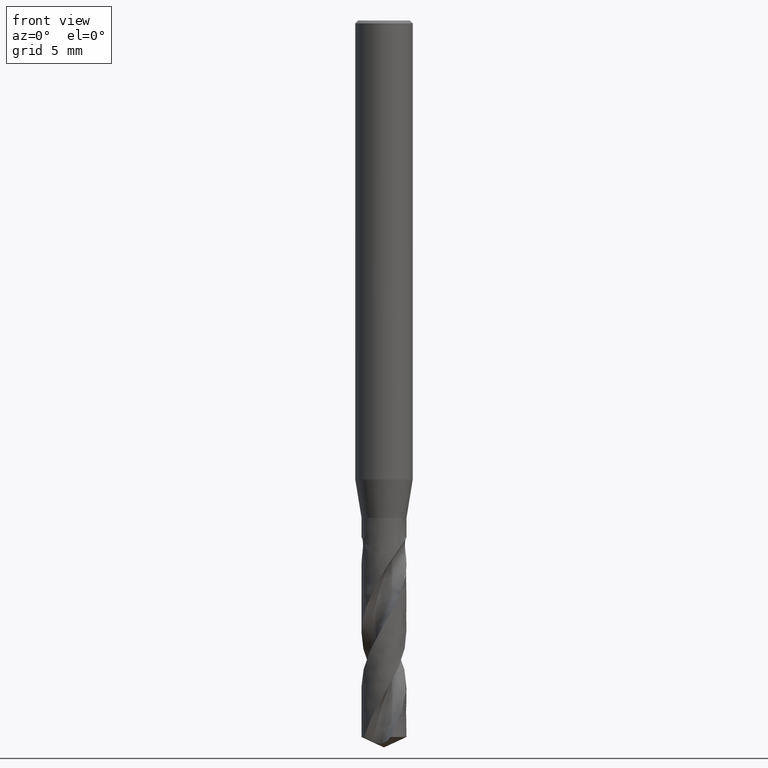
[diagram: clean part render]
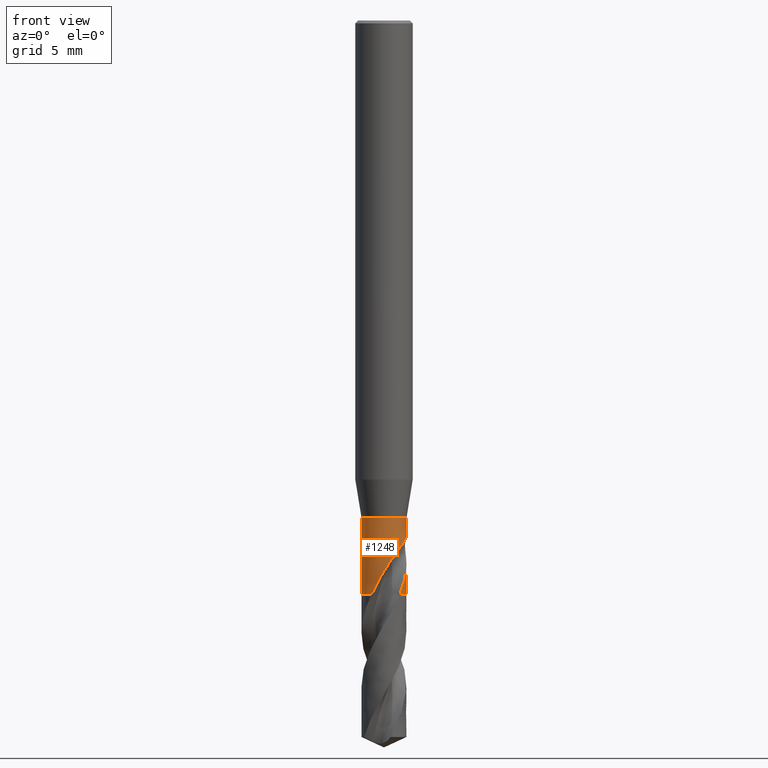
[diagram: same view with one face highlighted and labeled with its STEP entity id]
A machine part, front view. The second image highlights one B-rep face of the part: STEP entity #1248.
In plain terms, the highlighted face is a freeform B-spline surface patch.
Its self-contained STEP definition (entity closure, byte-faithful):
#75 = VERTEX_POINT('', #76);
#76 = CARTESIAN_POINT('', (-1.175, 1.66398883834147E-15, -26.));
#90 = EDGE_CURVE('', #75, #75, #91, .T.);
#91 = CIRCLE('', #92, 1.175);
#92 = AXIS2_PLACEMENT_3D('', #93, #94, #95);
#93 = CARTESIAN_POINT('', (9.74843858730207E-32, 1.59204083889156E-15, -26.));
#94 = DIRECTION('', (3.74939945665464E-33, 6.12323399573677E-17, -1.));
#95 = DIRECTION('', (-1., 6.12323399573677E-17, 0.));
#207 = VERTEX_POINT('', #208);
#208 = CARTESIAN_POINT('', (-0.655673400310535, -0.975047379425853, -30.));
#217 = VERTEX_POINT('', #218);
#218 = CARTESIAN_POINT('', (0.728223961589318, -0.922125187687202, -27.6945371314844));
#235 = EDGE_CURVE('', #217, #207, #236, .T.);
#236 = B_SPLINE_CURVE_WITH_KNOTS('', 3, (#237, #238, #239, #240, #241, #242, #243, #244, #245, #246, #247, #248, #249, #250, #251, #252, #253, #254, #255, #256, #257, #258, #259, #260, #261, #262, #263, #264, #265, #266, #267, #268, #269, #270, #271, #272, #273, #274, #275, #276, #277, #278, #279, #280, #281, #282, #283, #284, #285, #286, #287, #288, #289, #290, #291, #292, #293, #294, #295, #296, #297, #298, #299, #300, #301, #302, #303, #304, #305, #306, #307, #308, #309), .UNSPECIFIED., .F., .U., (4, 3, 3, 3, 3, 3, 3, 3, 3, 3, 3, 3, 3, 3, 3, 3, 3, 3, 3, 3, 3, 3, 3, 3, 4), (0., 0.130708941102905, 0.261447312499575, 0.39222457829846, 0.52304878510514, 0.653924929718064, 0.784858152188691, 0.915854203384153, 1.04691876560939, 1.2434761431331, 1.33095452846259, 1.356904802829, 1.48858396901624, 1.54702226254914, 1.63469544277415, 1.72232080386274, 1.78072807856721, 1.83914522586473, 2.03643365653902, 2.23362667741057, 2.36506456250743, 2.49649135390406, 2.58409155737215, 2.71551037703811, 2.74565441674045), .UNSPECIFIED.);
#237 = CARTESIAN_POINT('', (0.728223961589318, -0.922125187687202, -27.6945371314844));
#238 = CARTESIAN_POINT('', (0.706147619247108, -0.939559394769396, -27.7278087060624));
#239 = CARTESIAN_POINT('', (0.683618240093128, -0.956063156232706, -27.7612829148464));
#240 = CARTESIAN_POINT('', (0.66073713150605, -0.971623097218855, -27.7949378884614));
#241 = CARTESIAN_POINT('', (0.637850871031567, -0.987186541665672, -27.8286004397965));
#242 = CARTESIAN_POINT('', (0.614600674817937, -1.00181388645845, -27.8624629984731));
#243 = CARTESIAN_POINT('', (0.591089577367171, -1.0154989470836, -27.8965087984533));
#244 = CARTESIAN_POINT('', (0.567571485412259, -1.02918807898672, -27.9305647269903));
#245 = CARTESIAN_POINT('', (0.543778513475522, -1.04194264968761, -27.9648200616525));
#246 = CARTESIAN_POINT('', (0.519805333449783, -1.05376819809537, -27.9992546706134));
#247 = CARTESIAN_POINT('', (0.495823548524534, -1.06559799114883, -28.0337016394844));
#248 = CARTESIAN_POINT('', (0.471649816550208, -1.07650372513854, -28.0683449778835));
#249 = CARTESIAN_POINT('', (0.447381295979177, -1.08649665255259, -28.1031708875957));
#250 = CARTESIAN_POINT('', (0.423103140694892, -1.09649354720436, -28.1380106233527));
#251 = CARTESIAN_POINT('', (0.398717734821477, -1.10558223215939, -28.1730479365058));
#252 = CARTESIAN_POINT('', (0.374312186310554, -1.11378426419994, -28.2082654007329));
#253 = CARTESIAN_POINT('', (0.349895994023188, -1.12198987332033, -28.2434982240419));
#254 = CARTESIAN_POINT('', (0.325449100506042, -1.12931149643608, -28.2789265619153));
#255 = CARTESIAN_POINT('', (0.301060944744661, -1.13577608160652, -28.3145392184057));
#256 = CARTESIAN_POINT('', (0.276661086248874, -1.1422437688288, -28.3501689637431));
#257 = CARTESIAN_POINT('', (0.252308750143946, -1.14785687948354, -28.3859964107117));
#258 = CARTESIAN_POINT('', (0.228077925231853, -1.15265149113771, -28.4220039328229));
#259 = CARTESIAN_POINT('', (0.203834427580759, -1.15744861037725, -28.4580302868942));
#260 = CARTESIAN_POINT('', (0.179703067323351, -1.16142810634957, -28.4942502964889));
#261 = CARTESIAN_POINT('', (0.155761767129315, -1.16463010089079, -28.5306538553123));
#262 = CARTESIAN_POINT('', (0.119857025979221, -1.1694321285265, -28.5852482318041));
#263 = CARTESIAN_POINT('', (0.0843594954159682, -1.17248691571997, -28.6402922015818));
#264 = CARTESIAN_POINT('', (0.0495036255594145, -1.17395672452458, -28.6957508695212));
#265 = CARTESIAN_POINT('', (0.0339909276758754, -1.17461086685487, -28.7204328976648));
#266 = CARTESIAN_POINT('', (0.0186023193820767, -1.17495171604368, -28.7452035322269));
#267 = CARTESIAN_POINT('', (0.0033517643813148, -1.17499521942668, -28.7700569603752));
#268 = CARTESIAN_POINT('', (-0.00117227987280816, -1.17500812461143, -28.7774296762405));
#269 = CARTESIAN_POINT('', (-0.0056843942496658, -1.17499486727685, -28.7848098169748));
#270 = CARTESIAN_POINT('', (-0.0101842768730923, -1.17495586321554, -28.7921972128114));
#271 = CARTESIAN_POINT('', (-0.0330179773352431, -1.17475794537469, -28.8296829869625));
#272 = CARTESIAN_POINT('', (-0.0555443301514691, -1.17389642310447, -28.8673596553337));
#273 = CARTESIAN_POINT('', (-0.0776989930517137, -1.17242819246159, -28.9052227709283));
#274 = CARTESIAN_POINT('', (-0.0875310775885031, -1.17177660196503, -28.9220261569707));
#275 = CARTESIAN_POINT('', (-0.0972901831377558, -1.17100557324817, -28.9388682440366));
#276 = CARTESIAN_POINT('', (-0.106967460547565, -1.17012091784739, -28.9557506587264));
#277 = CARTESIAN_POINT('', (-0.121485983165955, -1.16879369647077, -28.9810788279157));
#278 = CARTESIAN_POINT('', (-0.135817782655265, -1.16721135807888, -29.0065024902311));
#279 = CARTESIAN_POINT('', (-0.149977718354141, -1.1653890697949, -29.0320023070246));
#280 = CARTESIAN_POINT('', (-0.164129930871367, -1.16356777543235, -29.0574882155827));
#281 = CARTESIAN_POINT('', (-0.178111979100726, -1.16150729484039, -29.0830527979671));
#282 = CARTESIAN_POINT('', (-0.191996665310271, -1.15920760889055, -29.1086469516104));
#283 = CARTESIAN_POINT('', (-0.201251596434679, -1.15767473772931, -29.1257069071313));
#284 = CARTESIAN_POINT('', (-0.21046497799381, -1.15603517372951, -29.1427801743576));
#285 = CARTESIAN_POINT('', (-0.219671499313267, -1.15428308156598, -29.1598452165414));
#286 = CARTESIAN_POINT('', (-0.228879576812821, -1.15253069324597, -29.1769131432326));
#287 = CARTESIAN_POINT('', (-0.238086504335566, -1.15066433140619, -29.1939703764921));
#288 = CARTESIAN_POINT('', (-0.247287774792765, -1.14868348836311, -29.2110169761651));
#289 = CARTESIAN_POINT('', (-0.278362626830041, -1.14199371603665, -29.2685873481088));
#290 = CARTESIAN_POINT('', (-0.309368037322333, -1.13399559375379, -29.3260582297454));
#291 = CARTESIAN_POINT('', (-0.340081876922254, -1.12470854757534, -29.3834616968791));
#292 = CARTESIAN_POINT('', (-0.370780863135347, -1.11542599266504, -29.4408374033708));
#293 = CARTESIAN_POINT('', (-0.40120617640093, -1.10485405861562, -29.4981665930941));
#294 = CARTESIAN_POINT('', (-0.431260520279246, -1.09299559177907, -29.555408871647));
#295 = CARTESIAN_POINT('', (-0.451293072039344, -1.08509139824017, -29.593563386436));
#296 = CARTESIAN_POINT('', (-0.471168242448222, -1.07661252284662, -29.6316862361695));
#297 = CARTESIAN_POINT('', (-0.490845301796055, -1.06756540301039, -29.6697717893674));
#298 = CARTESIAN_POINT('', (-0.510520700348769, -1.05851904677467, -29.7078541280454));
#299 = CARTESIAN_POINT('', (-0.530000037616222, -1.04890335784262, -29.7459073393837));
#300 = CARTESIAN_POINT('', (-0.549232374627432, -1.03873422907937, -29.7839327048891));
#301 = CARTESIAN_POINT('', (-0.562051348730394, -1.03195617614749, -29.8092778397724));
#302 = CARTESIAN_POINT('', (-0.574761257832528, -1.02493206358631, -29.8346137738538));
#303 = CARTESIAN_POINT('', (-0.58734918711692, -1.01766690640557, -29.8599397583029));
#304 = CARTESIAN_POINT('', (-0.606233741525474, -1.00676763513016, -29.89793408767));
#305 = CARTESIAN_POINT('', (-0.624849309943726, -0.995322041422717, -29.9359102804748));
#306 = CARTESIAN_POINT('', (-0.643139520461709, -0.983359830997931, -29.9738755711304));
#307 = CARTESIAN_POINT('', (-0.647334816336528, -0.980616012822658, -29.9825838157466));
#308 = CARTESIAN_POINT('', (-0.651513137322259, -0.97784496017656, -29.991292053987));
#309 = CARTESIAN_POINT('', (-0.655673400310535, -0.975047379425853, -30.));
#344 = VERTEX_POINT('', #345);
#345 = CARTESIAN_POINT('', (0.825852395738025, -0.83581865285106, -30.));
#400 = EDGE_CURVE('', #401, #344, #403, .T.);
#401 = VERTEX_POINT('', #402);
#402 = CARTESIAN_POINT('', (1.05736340685915, -0.512452559594757, -29.2913688102384));
#403 = B_SPLINE_CURVE_WITH_KNOTS('', 3, (#404, #405, #406, #407, #408, #409, #410, #411, #412, #413, #414, #415, #416, #417, #418, #419, #420, #421, #422), .UNSPECIFIED., .F., .U., (4, 3, 3, 3, 3, 3, 4), (0., 0.131423450375898, 0.328527383611053, 0.525611318318498, 0.613193575865388, 0.744564164750015, 0.81353262380367), .UNSPECIFIED.);
#404 = CARTESIAN_POINT('', (1.05736340685915, -0.512452559594757, -29.2913688102384));
#405 = CARTESIAN_POINT('', (1.04824423267107, -0.531268508323489, -29.3298645963408));
#406 = CARTESIAN_POINT('', (1.03856526669708, -0.549958086451639, -29.368293919513));
#407 = CARTESIAN_POINT('', (1.02834007429441, -0.568455531770347, -29.4066659766521));
#408 = CARTESIAN_POINT('', (1.01300471645007, -0.596197302487001, -29.4642149404543));
#409 = CARTESIAN_POINT('', (0.996432533162553, -0.623523224034753, -29.5216505043809));
#410 = CARTESIAN_POINT('', (0.978635789194107, -0.650305306843197, -29.5789449912185));
#411 = CARTESIAN_POINT('', (0.960840850916048, -0.677084672292244, -29.636233664852));
#412 = CARTESIAN_POINT('', (0.941806463035769, -0.703339534496423, -29.6933988530257));
#413 = CARTESIAN_POINT('', (0.921601294972819, -0.728886858918735, -29.7504503365057));
#414 = CARTESIAN_POINT('', (0.912622307234959, -0.740239850985341, -29.7758034822454));
#415 = CARTESIAN_POINT('', (0.903411524838046, -0.751454561233572, -29.8011379139708));
#416 = CARTESIAN_POINT('', (0.893977384692245, -0.762515203559124, -29.8264549801439));
#417 = CARTESIAN_POINT('', (0.879826475806271, -0.779105813763161, -29.8644297707596));
#418 = CARTESIAN_POINT('', (0.865168363260055, -0.79535433606874, -29.9023699587027));
#419 = CARTESIAN_POINT('', (0.850045696981187, -0.811201154488687, -29.9402878252319));
#420 = CARTESIAN_POINT('', (0.842106423823539, -0.819520601456278, -29.9601943876317));
#421 = CARTESIAN_POINT('', (0.834038381967652, -0.827730275885369, -29.980098134002));
#422 = CARTESIAN_POINT('', (0.825852395738025, -0.83581865285106, -30.));
#425 = VERTEX_POINT('', #426);
#426 = CARTESIAN_POINT('', (1.15441995681227, -0.218951052323476, -28.7489366982256));
#435 = EDGE_CURVE('', #436, #425, #438, .T.);
#436 = VERTEX_POINT('', #437);
#437 = CARTESIAN_POINT('', (1.17349179711718, 0.0595147216972623, -27.));
#438 = B_SPLINE_CURVE_WITH_KNOTS('', 3, (#439, #440, #441, #442, #443, #444, #445, #446, #447, #448, #449, #450, #451, #452, #453, #454, #455, #456, #457, #458, #459, #460, #461, #462, #463, #464, #465, #466, #467, #468, #469, #470, #471, #472, #473, #474, #475, #476, #477, #478, #479, #480, #481, #482, #483, #484, #485, #486, #487, #488, #489, #490, #491, #492, #493, #494, #495, #496, #497, #498, #499, #500, #501, #502, #503, #504, #505, #506, #507, #508, #509, #510, #511, #512, #513, #514, #515, #516, #517, #518, #519, #520), .UNSPECIFIED., .F., .U., (4, 3, 3, 3, 3, 3, 3, 3, 3, 3, 3, 3, 3, 3, 3, 3, 3, 3, 3, 3, 3, 3, 3, 3, 3, 3, 3, 4), (0., 0.0587268815344759, 0.117273374530463, 0.175594212654749, 0.214345425771027, 0.253030209825988, 0.291668855398273, 0.330288803076299, 0.368918028663163, 0.4075786970095, 0.446284128302547, 0.504328935508073, 0.530232402815746, 0.617652774464318, 0.705346455306154, 0.793218250621896, 0.881192313217055, 0.969214123800954, 1.05724705060524, 1.18960328857971, 1.32183325468689, 1.45389201843325, 1.5857641876645, 1.71745148788703, 1.74340668526851, 1.87543848439657, 2.00733830847293, 2.13530048111484), .UNSPECIFIED.);
#439 = CARTESIAN_POINT('', (1.17349179711715, 0.0595147216977758, -27.));
#440 = CARTESIAN_POINT('', (1.17250027583282, 0.0790652137548344, -27.0000180357386));
#441 = CARTESIAN_POINT('', (1.17101383921177, 0.0986369419191684, -27.0011025798756));
#442 = CARTESIAN_POINT('', (1.16906268767731, 0.117972167398513, -27.0034578384115));
#443 = CARTESIAN_POINT('', (1.16711752940121, 0.137248001795367, -27.0058058624129));
#444 = CARTESIAN_POINT('', (1.16469907354069, 0.156384342570996, -27.0094335294071));
#445 = CARTESIAN_POINT('', (1.16189267483894, 0.175015462618655, -27.0145188161465));
#446 = CARTESIAN_POINT('', (1.1590970927977, 0.193574773019162, -27.0195845027413));
#447 = CARTESIAN_POINT('', (1.15589734984247, 0.211751022429495, -27.0261378736872));
#448 = CARTESIAN_POINT('', (1.15245264414211, 0.2290805600872, -27.034246239082));
#449 = CARTESIAN_POINT('', (1.15016381344264, 0.240595151244981, -27.0396338330458));
#450 = CARTESIAN_POINT('', (1.14775877591772, 0.251785195212881, -27.0457281298189));
#451 = CARTESIAN_POINT('', (1.14530134421659, 0.262506820741255, -27.0525000202258));
#452 = CARTESIAN_POINT('', (1.1428481251547, 0.273210066779999, -27.0592603019556));
#453 = CARTESIAN_POINT('', (1.14033347997714, 0.283487896875866, -27.0667229619066));
#454 = CARTESIAN_POINT('', (1.13782768568226, 0.293211796650392, -27.0748128282049));
#455 = CARTESIAN_POINT('', (1.13532487999258, 0.302924098945644, -27.0828930458994));
#456 = CARTESIAN_POINT('', (1.13282129836942, 0.312122780319283, -27.0916313563214));
#457 = CARTESIAN_POINT('', (1.13038420170323, 0.320712576210771, -27.1009135293734));
#458 = CARTESIAN_POINT('', (1.12794828438935, 0.329298215354711, -27.1101912106248));
#459 = CARTESIAN_POINT('', (1.12556963813704, 0.337309419549899, -27.1200475316921));
#460 = CARTESIAN_POINT('', (1.12330385852, 0.344693257018571, -27.1303464369269));
#461 = CARTESIAN_POINT('', (1.12103753458072, 0.352078868352175, -27.1406478163314));
#462 = CARTESIAN_POINT('', (1.1188761738599, 0.358863848169986, -27.1514274759489));
#463 = CARTESIAN_POINT('', (1.11685912680145, 0.365035191290245, -27.1625471855611));
#464 = CARTESIAN_POINT('', (1.11484043794137, 0.371211557655324, -27.1736759462053));
#465 = CARTESIAN_POINT('', (1.11295996962745, 0.376793176976379, -27.185178552283));
#466 = CARTESIAN_POINT('', (1.11124082244056, 0.381796849831994, -27.1969292846248));
#467 = CARTESIAN_POINT('', (1.10951968475279, 0.386806316150345, -27.2086936224584));
#468 = CARTESIAN_POINT('', (1.10795561445941, 0.391250071027334, -27.2207360785623));
#469 = CARTESIAN_POINT('', (1.10655834604955, 0.395162785176041, -27.2329506199527));
#470 = CARTESIAN_POINT('', (1.10446292499997, 0.401030507891557, -27.251268222326));
#471 = CARTESIAN_POINT('', (1.10273629558481, 0.405725243051064, -27.2700361877191));
#472 = CARTESIAN_POINT('', (1.10137297993863, 0.409392915255141, -27.2889846722759));
#473 = CARTESIAN_POINT('', (1.1007645774997, 0.411029675399717, -27.2974407508448));
#474 = CARTESIAN_POINT('', (1.10022725967446, 0.412464237983772, -27.3059435151484));
#475 = CARTESIAN_POINT('', (1.09975875769987, 0.413709650434301, -27.3144748606337));
#476 = CARTESIAN_POINT('', (1.09817763281608, 0.417912733287567, -27.3432668900609));
#477 = CARTESIAN_POINT('', (1.09737958673878, 0.419980008768347, -27.372468090043));
#478 = CARTESIAN_POINT('', (1.09723419818462, 0.42035950605898, -27.401605379963));
#479 = CARTESIAN_POINT('', (1.09708835509078, 0.420740189801884, -27.4308337640874));
#480 = CARTESIAN_POINT('', (1.09759522042194, 0.419425626222034, -27.4601225062277));
#481 = CARTESIAN_POINT('', (1.09860616924773, 0.41676070459058, -27.489214443324));
#482 = CARTESIAN_POINT('', (1.09961917140981, 0.414090370241701, -27.5183654690002));
#483 = CARTESIAN_POINT('', (1.10113988161113, 0.410056121251838, -27.5473980536605));
#484 = CARTESIAN_POINT('', (1.10302928487431, 0.404909121544162, -27.5761709177204));
#485 = CARTESIAN_POINT('', (1.10492088706982, 0.399756131636156, -27.6049772683219));
#486 = CARTESIAN_POINT('', (1.10718515937803, 0.393477331767004, -27.6335751768807));
#487 = CARTESIAN_POINT('', (1.10969706721554, 0.386260817341374, -27.6618868270868));
#488 = CARTESIAN_POINT('', (1.11221033839292, 0.379040386147104, -27.6902138434624));
#489 = CARTESIAN_POINT('', (1.11497446715258, 0.3708717714894, -27.7182899590348));
#490 = CARTESIAN_POINT('', (1.11787904235186, 0.361899774344359, -27.7460737263374));
#491 = CARTESIAN_POINT('', (1.12078398436815, 0.352926644131309, -27.773861002435));
#492 = CARTESIAN_POINT('', (1.12383210925261, 0.343141080880676, -27.8013810156901));
#493 = CARTESIAN_POINT('', (1.12692586501502, 0.332660630012257, -27.8286147684932));
#494 = CARTESIAN_POINT('', (1.13157728226069, 0.316903423026466, -27.8695603237278));
#495 = CARTESIAN_POINT('', (1.1363344765806, 0.299559630236739, -27.9099066930374));
#496 = CARTESIAN_POINT('', (1.14091531390553, 0.280957730799239, -27.9496489754905));
#497 = CARTESIAN_POINT('', (1.14549178097264, 0.262373578138264, -27.9893533426001));
#498 = CARTESIAN_POINT('', (1.14989760828322, 0.242510944228357, -28.0284962773144));
#499 = CARTESIAN_POINT('', (1.15390404549158, 0.22165390544308, -28.0671186017205));
#500 = CARTESIAN_POINT('', (1.15790529543771, 0.200823870932136, -28.1056909205694));
#501 = CARTESIAN_POINT('', (1.16151084483505, 0.178987732108991, -28.143774200847));
#502 = CARTESIAN_POINT('', (1.16454351718573, 0.156407789386202, -28.1814394793578));
#503 = CARTESIAN_POINT('', (1.16757190447414, 0.133859751349961, -28.2190515381187));
#504 = CARTESIAN_POINT('', (1.17003070195721, 0.110556223665365, -28.2562670618913));
#505 = CARTESIAN_POINT('', (1.17179276101512, 0.086756701369707, -28.2931822349162));
#506 = CARTESIAN_POINT('', (1.17355234987699, 0.0629905431577714, -28.3300456572838));
#507 = CARTESIAN_POINT('', (1.17461788608262, 0.038720968106359, -28.366626611454));
#508 = CARTESIAN_POINT('', (1.1749142236547, 0.0141974312418025, -28.4030319223504));
#509 = CARTESIAN_POINT('', (1.17497263095869, 0.00936391093471311, -28.4102073069809));
#510 = CARTESIAN_POINT('', (1.17500132122165, 0.00452034772682107, -28.4173762378924));
#511 = CARTESIAN_POINT('', (1.17499995329582, -0.000331292646590481, -28.4245396210584));
#512 = CARTESIAN_POINT('', (1.17499299477784, -0.0250111591800315, -28.4609791192197));
#513 = CARTESIAN_POINT('', (1.17420353559078, -0.0499064171762584, -28.4972808671621));
#514 = CARTESIAN_POINT('', (1.17262005406894, -0.074747634045271, -28.533576037881));
#515 = CARTESIAN_POINT('', (1.17103815534803, -0.0995640203742007, -28.5698349290288));
#516 = CARTESIAN_POINT('', (1.16866362571747, -0.124332696214461, -28.6061007540281));
#517 = CARTESIAN_POINT('', (1.1655403281255, -0.148797659635815, -28.642498187979));
#518 = CARTESIAN_POINT('', (1.16251027142547, -0.172532261974547, -28.6778090366443));
#519 = CARTESIAN_POINT('', (1.15877514322885, -0.195988321331397, -28.7132559756725));
#520 = CARTESIAN_POINT('', (1.15441995681227, -0.218951052323477, -28.7489366982256));
#522 = EDGE_CURVE('', #436, #523, #525, .T.);
#523 = VERTEX_POINT('', #524);
#524 = CARTESIAN_POINT('', (1.17354181050211, 0.0585202443897507, -27.));
#525 = LINE('', #526, #527);
#526 = CARTESIAN_POINT('', (1.17349179711718, 0.0595147216972624, -27.));
#527 = VECTOR('', #528, 0.0009957341280824);
#528 = DIRECTION('', (5.00133849321571E-5, -0.000994477307511663, 0.));
#530 = EDGE_CURVE('', #523, #217, #531, .T.);
#531 = B_SPLINE_CURVE_WITH_KNOTS('', 3, (#532, #533, #534, #535, #536, #537, #538, #539, #540, #541, #542, #543, #544, #545, #546, #547, #548, #549, #550, #551, #552, #553, #554, #555, #556, #557, #558, #559, #560, #561, #562, #563, #564, #565, #566, #567, #568, #569, #570, #571, #572, #573, #574), .UNSPECIFIED., .F., .U., (4, 3, 3, 3, 3, 3, 3, 3, 3, 3, 3, 3, 3, 3, 4), (0., 0.0582059212027767, 0.116818109314638, 0.175293568703316, 0.233659898818768, 0.321029808037252, 0.40819777254445, 0.495231349489677, 0.582174506500835, 0.711999668513521, 0.841701365883383, 0.971348733716662, 1.10099212928379, 1.23067932145943, 1.35048899776661), .UNSPECIFIED.);
#532 = CARTESIAN_POINT('', (1.17354181050294, 0.0585202443731292, -27.));
#533 = CARTESIAN_POINT('', (1.1745081149824, 0.0391423569349119, -27.0000178569212));
#534 = CARTESIAN_POINT('', (1.17499319272576, 0.0197165407823541, -27.0010778860047));
#535 = CARTESIAN_POINT('', (1.1749999284895, 0.000409938623512448, -27.002999253355));
#536 = CARTESIAN_POINT('', (1.17500671126766, -0.0190314201618357, -27.0049340315053));
#537 = CARTESIAN_POINT('', (1.17452937370209, -0.0384051273015388, -27.0077467701155));
#538 = CARTESIAN_POINT('', (1.17358750012023, -0.0575966974882894, -27.0112832021932));
#539 = CARTESIAN_POINT('', (1.1726478237123, -0.0767434981659664, -27.0148113845902));
#540 = CARTESIAN_POINT('', (1.17124439750706, -0.095749032705835, -27.0190671165365));
#541 = CARTESIAN_POINT('', (1.16940438921187, -0.114535472636294, -27.023926651821));
#542 = CARTESIAN_POINT('', (1.16756781481476, -0.133286852550849, -27.0287771180437));
#543 = CARTESIAN_POINT('', (1.16529364311896, -0.151850542442827, -27.0342371044153));
#544 = CARTESIAN_POINT('', (1.16261194740529, -0.170171853578936, -27.0402080627259));
#545 = CARTESIAN_POINT('', (1.15859765507969, -0.197597447882348, -27.0491461282941));
#546 = CARTESIAN_POINT('', (1.15366053742267, -0.224542304495294, -27.0592477087483));
#547 = CARTESIAN_POINT('', (1.14790398496506, -0.250881329120639, -27.0702606405769));
#548 = CARTESIAN_POINT('', (1.14216073806464, -0.277159474356602, -27.0812481173791));
#549 = CARTESIAN_POINT('', (1.13558956184571, -0.302894499675301, -27.0931685295501));
#550 = CARTESIAN_POINT('', (1.12829023312823, -0.328003277159609, -27.1058381602471));
#551 = CARTESIAN_POINT('', (1.12100215784538, -0.353073344236839, -27.1184882580711));
#552 = CARTESIAN_POINT('', (1.11297548071811, -0.377564215696614, -27.1319085651644));
#553 = CARTESIAN_POINT('', (1.10430477471706, -0.40141744423617, -27.1459617365227));
#554 = CARTESIAN_POINT('', (1.09564307678729, -0.425245891450777, -27.16000030792));
#555 = CARTESIAN_POINT('', (1.08632613177853, -0.448473208792204, -27.1746915148488));
#556 = CARTESIAN_POINT('', (1.07644346567981, -0.471056753688164, -27.1899302091917));
#557 = CARTESIAN_POINT('', (1.06168648224961, -0.504778928908493, -27.2126849150241));
#558 = CARTESIAN_POINT('', (1.04563496930957, -0.537139196152779, -27.2367091274684));
#559 = CARTESIAN_POINT('', (1.02857020834073, -0.568039018478409, -27.2617436079382));
#560 = CARTESIAN_POINT('', (1.01152167607967, -0.598909454855525, -27.2867542804408));
#561 = CARTESIAN_POINT('', (0.993423543957518, -0.628392466815197, -27.3128310920376));
#562 = CARTESIAN_POINT('', (0.97454090542258, -0.656425946819698, -27.3397892075912));
#563 = CARTESIAN_POINT('', (0.955666176460314, -0.684447684140731, -27.3667360309106));
#564 = CARTESIAN_POINT('', (0.935972062428233, -0.711074227263332, -27.3946149356906));
#565 = CARTESIAN_POINT('', (0.915713377257272, -0.736270338063457, -27.4232915135651));
#566 = CARTESIAN_POINT('', (0.895455312792237, -0.761465676879856, -27.4519672128178));
#567 = CARTESIAN_POINT('', (0.874601180678303, -0.785270558400897, -27.4814886337112));
#568 = CARTESIAN_POINT('', (0.85339133599154, -0.807680770883257, -27.5117444573892));
#569 = CARTESIAN_POINT('', (0.832174326117067, -0.830098554065988, -27.5420105022007));
#570 = CARTESIAN_POINT('', (0.810571560874185, -0.851152476351562, -27.5730541596562));
#571 = CARTESIAN_POINT('', (0.788813901538431, -0.870860280837126, -27.6047867719339));
#572 = CARTESIAN_POINT('', (0.768713396018286, -0.88906705697692, -27.6341024964985));
#573 = CARTESIAN_POINT('', (0.748459451279226, -0.906144745266315, -27.6640399325416));
#574 = CARTESIAN_POINT('', (0.728223961589318, -0.922125187687201, -27.6945371314844));
#661 = EDGE_CURVE('', #425, #401, #662, .T.);
#662 = B_SPLINE_CURVE_WITH_KNOTS('', 3, (#663, #664, #665, #666, #667, #668, #669, #670, #671, #672, #673, #674, #675, #676, #677, #678, #679, #680, #681, #682, #683, #684), .UNSPECIFIED., .F., .U., (4, 3, 3, 3, 3, 3, 3, 4), (0., 0.131605573293556, 0.219294203710329, 0.258234995294458, 0.345876230422295, 0.433475715639032, 0.491875350380407, 0.62502878412215), .UNSPECIFIED.);
#663 = CARTESIAN_POINT('', (1.15441995681227, -0.218951052323476, -28.7489366982256));
#664 = CARTESIAN_POINT('', (1.14994076742903, -0.242567589259398, -28.7856333395077));
#665 = CARTESIAN_POINT('', (1.14483008115566, -0.265549085791542, -28.8226737051001));
#666 = CARTESIAN_POINT('', (1.13920575536291, -0.287811130688207, -28.8600530543744));
#667 = CARTESIAN_POINT('', (1.13545827405614, -0.302644303618588, -28.8849588684801));
#668 = CARTESIAN_POINT('', (1.1314820263145, -0.317161403110115, -28.9100222340141));
#669 = CARTESIAN_POINT('', (1.1273193163989, -0.331324853994755, -28.9352498917887));
#670 = CARTESIAN_POINT('', (1.12547073901232, -0.33761456323516, -28.9464529971273));
#671 = CARTESIAN_POINT('', (1.12358570393588, -0.343833763049681, -28.9576899893554));
#672 = CARTESIAN_POINT('', (1.12166710531533, -0.349982720792803, -28.9689592638626));
#673 = CARTESIAN_POINT('', (1.11734905357628, -0.363821737141296, -28.99432220839));
#674 = CARTESIAN_POINT('', (1.11286173080712, -0.377306052164411, -29.0198521077778));
#675 = CARTESIAN_POINT('', (1.10820775225925, -0.39051322363378, -29.0454910236065));
#676 = CARTESIAN_POINT('', (1.10355599074074, -0.403714103564311, -29.07111772575));
#677 = CARTESIAN_POINT('', (1.09873771032961, -0.416640429896281, -29.0968566320067));
#678 = CARTESIAN_POINT('', (1.09371589768198, -0.429430477676794, -29.1226214540403));
#679 = CARTESIAN_POINT('', (1.09036802384876, -0.437957172974816, -29.1397979955714));
#680 = CARTESIAN_POINT('', (1.08692818025293, -0.446426168079186, -29.1569855991901));
#681 = CARTESIAN_POINT('', (1.08337594349593, -0.454886321023501, -29.1741539944867));
#682 = CARTESIAN_POINT('', (1.07527670582514, -0.474175798081099, -29.2132986020807));
#683 = CARTESIAN_POINT('', (1.06660262065667, -0.493388928445421, -29.2523662875572));
#684 = CARTESIAN_POINT('', (1.05736340685915, -0.512452559594757, -29.2913688102384));
#798 = VERTEX_POINT('', #799);
#799 = CARTESIAN_POINT('', (-1.175, 1.81241911924076E-15, -28.4240504446284));
#815 = EDGE_CURVE('', #816, #798, #818, .T.);
#816 = VERTEX_POINT('', #817);
#817 = CARTESIAN_POINT('', (-1.17349179711715, -0.0595147216977034, -27.));
#818 = B_SPLINE_CURVE_WITH_KNOTS('', 3, (#819, #820, #821, #822, #823, #824, #825, #826, #827, #828, #829, #830, #831, #832, #833, #834, #835, #836, #837, #838, #839, #840, #841, #842, #843, #844, #845, #846, #847, #848, #849, #850, #851, #852, #853, #854, #855, #856, #857, #858, #859, #860, #861, #862, #863, #864, #865, #866, #867, #868, #869, #870, #871, #872, #873, #874, #875, #876, #877, #878, #879, #880, #881, #882, #883, #884, #885, #886, #887, #888, #889, #890, #891), .UNSPECIFIED., .F., .U., (4, 3, 3, 3, 3, 3, 3, 3, 3, 3, 3, 3, 3, 3, 3, 3, 3, 3, 3, 3, 3, 3, 3, 3, 4), (0., 0.0587268815344766, 0.117273374530464, 0.175594212654751, 0.214345425771028, 0.253030209825989, 0.291668855398274, 0.3302888030763, 0.368918028663164, 0.4075786970095, 0.446284128302548, 0.504328935508077, 0.530232402815749, 0.617652774464322, 0.705346455306159, 0.7932182506219, 0.881192313217062, 0.96921412380096, 1.05724705060525, 1.18960328857972, 1.32183325468689, 1.45389201843325, 1.58576418766451, 1.71745148788704, 1.74281588597165), .UNSPECIFIED.);
#819 = CARTESIAN_POINT('', (-1.17349179711715, -0.0595147216978094, -27.));
#820 = CARTESIAN_POINT('', (-1.17250027583282, -0.0790652137548682, -27.0000180357386));
#821 = CARTESIAN_POINT('', (-1.17101383921176, -0.0986369419192023, -27.0011025798756));
#822 = CARTESIAN_POINT('', (-1.16906268767731, -0.117972167398547, -27.0034578384115));
#823 = CARTESIAN_POINT('', (-1.16711752940121, -0.137248001795401, -27.0058058624129));
#824 = CARTESIAN_POINT('', (-1.16469907354068, -0.15638434257103, -27.0094335294071));
#825 = CARTESIAN_POINT('', (-1.16189267483893, -0.175015462618688, -27.0145188161465));
#826 = CARTESIAN_POINT('', (-1.15909709279769, -0.193574773019195, -27.0195845027413));
#827 = CARTESIAN_POINT('', (-1.15589734984247, -0.211751022429526, -27.0261378736872));
#828 = CARTESIAN_POINT('', (-1.1524526441421, -0.229080560087231, -27.034246239082));
#829 = CARTESIAN_POINT('', (-1.15016381344263, -0.240595151245011, -27.0396338330458));
#830 = CARTESIAN_POINT('', (-1.14775877591772, -0.25178519521291, -27.0457281298189));
#831 = CARTESIAN_POINT('', (-1.14530134421658, -0.262506820741284, -27.0525000202258));
#832 = CARTESIAN_POINT('', (-1.14284812515469, -0.273210066780027, -27.0592603019556));
#833 = CARTESIAN_POINT('', (-1.14033347997713, -0.283487896875892, -27.0667229619066));
#834 = CARTESIAN_POINT('', (-1.13782768568225, -0.293211796650417, -27.0748128282049));
#835 = CARTESIAN_POINT('', (-1.13532487999257, -0.302924098945668, -27.0828930458994));
#836 = CARTESIAN_POINT('', (-1.13282129836941, -0.312122780319305, -27.0916313563214));
#837 = CARTESIAN_POINT('', (-1.13038420170322, -0.320712576210792, -27.1009135293734));
#838 = CARTESIAN_POINT('', (-1.12794828438934, -0.32929821535473, -27.1101912106248));
#839 = CARTESIAN_POINT('', (-1.12556963813703, -0.337309419549918, -27.1200475316921));
#840 = CARTESIAN_POINT('', (-1.12330385852, -0.344693257018589, -27.1303464369269));
#841 = CARTESIAN_POINT('', (-1.12103753458071, -0.352078868352192, -27.1406478163315));
#842 = CARTESIAN_POINT('', (-1.1188761738599, -0.358863848170002, -27.1514274759489));
#843 = CARTESIAN_POINT('', (-1.11685912680144, -0.365035191290259, -27.1625471855612));
#844 = CARTESIAN_POINT('', (-1.11484043794136, -0.371211557655337, -27.1736759462053));
#845 = CARTESIAN_POINT('', (-1.11295996962745, -0.376793176976392, -27.185178552283));
#846 = CARTESIAN_POINT('', (-1.11124082244055, -0.381796849832006, -27.1969292846248));
#847 = CARTESIAN_POINT('', (-1.10951968475279, -0.386806316150356, -27.2086936224584));
#848 = CARTESIAN_POINT('', (-1.1079556144594, -0.391250071027343, -27.2207360785623));
#849 = CARTESIAN_POINT('', (-1.10655834604955, -0.39516278517605, -27.2329506199528));
#850 = CARTESIAN_POINT('', (-1.10446292499996, -0.401030507891565, -27.2512682223261));
#851 = CARTESIAN_POINT('', (-1.1027362955848, -0.405725243051071, -27.2700361877191));
#852 = CARTESIAN_POINT('', (-1.10137297993863, -0.409392915255146, -27.2889846722759));
#853 = CARTESIAN_POINT('', (-1.1007645774997, -0.411029675399721, -27.2974407508448));
#854 = CARTESIAN_POINT('', (-1.10022725967446, -0.412464237983776, -27.3059435151484));
#855 = CARTESIAN_POINT('', (-1.09975875769987, -0.413709650434304, -27.3144748606337));
#856 = CARTESIAN_POINT('', (-1.09817763281608, -0.417912733287568, -27.343266890061));
#857 = CARTESIAN_POINT('', (-1.09737958673877, -0.419980008768345, -27.372468090043));
#858 = CARTESIAN_POINT('', (-1.09723419818462, -0.420359506058977, -27.4016053799631));
#859 = CARTESIAN_POINT('', (-1.09708835509078, -0.420740189801879, -27.4308337640875));
#860 = CARTESIAN_POINT('', (-1.09759522042194, -0.419425626222028, -27.4601225062277));
#861 = CARTESIAN_POINT('', (-1.09860616924773, -0.416760704590573, -27.489214443324));
#862 = CARTESIAN_POINT('', (-1.09961917140982, -0.414090370241692, -27.5183654690002));
#863 = CARTESIAN_POINT('', (-1.10113988161114, -0.410056121251828, -27.5473980536606));
#864 = CARTESIAN_POINT('', (-1.10302928487432, -0.404909121544151, -27.5761709177205));
#865 = CARTESIAN_POINT('', (-1.10492088706982, -0.399756131636143, -27.6049772683219));
#866 = CARTESIAN_POINT('', (-1.10718515937804, -0.393477331766991, -27.6335751768807));
#867 = CARTESIAN_POINT('', (-1.10969706721555, -0.38626081734136, -27.6618868270868));
#868 = CARTESIAN_POINT('', (-1.11221033839293, -0.379040386147089, -27.6902138434624));
#869 = CARTESIAN_POINT('', (-1.11497446715258, -0.370871771489385, -27.7182899590348));
#870 = CARTESIAN_POINT('', (-1.11787904235186, -0.361899774344343, -27.7460737263375));
#871 = CARTESIAN_POINT('', (-1.12078398436816, -0.352926644131292, -27.773861002435));
#872 = CARTESIAN_POINT('', (-1.12383210925261, -0.343141080880657, -27.8013810156902));
#873 = CARTESIAN_POINT('', (-1.12692586501502, -0.332660630012238, -27.8286147684932));
#874 = CARTESIAN_POINT('', (-1.1315772822607, -0.316903423026446, -27.8695603237279));
#875 = CARTESIAN_POINT('', (-1.13633447658061, -0.299559630236719, -27.9099066930374));
#876 = CARTESIAN_POINT('', (-1.14091531390553, -0.280957730799218, -27.9496489754905));
#877 = CARTESIAN_POINT('', (-1.14549178097264, -0.262373578138242, -27.9893533426002));
#878 = CARTESIAN_POINT('', (-1.14989760828322, -0.242510944228334, -28.0284962773144));
#879 = CARTESIAN_POINT('', (-1.15390404549158, -0.221653905443056, -28.0671186017205));
#880 = CARTESIAN_POINT('', (-1.15790529543771, -0.200823870932111, -28.1056909205695));
#881 = CARTESIAN_POINT('', (-1.16151084483505, -0.178987732108966, -28.1437742008471));
#882 = CARTESIAN_POINT('', (-1.16454351718574, -0.156407789386176, -28.1814394793579));
#883 = CARTESIAN_POINT('', (-1.16757190447415, -0.133859751349935, -28.2190515381187));
#884 = CARTESIAN_POINT('', (-1.17003070195721, -0.110556223665339, -28.2562670618913));
#885 = CARTESIAN_POINT('', (-1.17179276101513, -0.0867567013696808, -28.2931822349162));
#886 = CARTESIAN_POINT('', (-1.17355234987699, -0.0629905431577451, -28.3300456572838));
#887 = CARTESIAN_POINT('', (-1.17461788608262, -0.0387209681063326, -28.3666266114541));
#888 = CARTESIAN_POINT('', (-1.1749142236547, -0.0141974312417761, -28.4030319223505));
#889 = CARTESIAN_POINT('', (-1.17497130147567, -0.00947393284501229, -28.4100439789148));
#890 = CARTESIAN_POINT('', (-1.17499999999999, -0.00474084434042125, -28.4170498712816));
#891 = CARTESIAN_POINT('', (-1.17499999999999, 1.5721653872255E-14, -28.4240504446284));
#893 = EDGE_CURVE('', #816, #894, #896, .T.);
#894 = VERTEX_POINT('', #895);
#895 = CARTESIAN_POINT('', (-1.17354181050213, -0.0585202443893016, -27.));
#896 = LINE('', #897, #898);
#897 = CARTESIAN_POINT('', (-1.17349179711715, -0.0595147216977034, -27.));
#898 = VECTOR('', #899, 0.000995734128973727);
#899 = DIRECTION('', (-5.00133849770101E-5, 0.00099447730840186, 0.));
#901 = EDGE_CURVE('', #894, #902, #904, .T.);
#902 = VERTEX_POINT('', #903);
#903 = CARTESIAN_POINT('', (-1.175, 1.72540733570457E-15, -27.0030401811504));
#904 = B_SPLINE_CURVE_WITH_KNOTS('', 3, (#905, #906, #907, #908), .UNSPECIFIED., .F., .U., (4, 4), (0., 0.058617301366798), .UNSPECIFIED.);
#905 = CARTESIAN_POINT('', (-1.17354181050294, -0.058520244373117, -27.));
#906 = CARTESIAN_POINT('', (-1.17451494450227, -0.0390054004475184, -27.000017983128));
#907 = CARTESIAN_POINT('', (-1.175, -0.0194418255169627, -27.0010929094226));
#908 = CARTESIAN_POINT('', (-1.175, 1.72540733570457E-15, -27.0030401811504));
#910 = EDGE_CURVE('', #911, #902, #913, .T.);
#911 = VERTEX_POINT('', #912);
#912 = CARTESIAN_POINT('', (-0.728223961589318, 0.922125187687205, -27.6945371314844));
#913 = B_SPLINE_CURVE_WITH_KNOTS('', 3, (#914, #915, #916, #917, #918, #919, #920, #921, #922, #923, #924, #925, #926, #927, #928, #929, #930, #931, #932, #933, #934, #935, #936, #937, #938, #939, #940, #941, #942, #943, #944, #945, #946, #947, #948, #949, #950), .UNSPECIFIED., .F., .U., (4, 3, 3, 3, 3, 3, 3, 3, 3, 3, 3, 3, 4), (0., 0.133032148209649, 0.266170297436917, 0.399383526503325, 0.532632063547312, 0.665877405874716, 0.799077781390681, 0.887400552591192, 0.975665544765975, 1.06384523813379, 1.1519000885122, 1.23977270926246, 1.29180713985473), .UNSPECIFIED.);
#914 = CARTESIAN_POINT('', (-0.728223961589319, 0.922125187687205, -27.6945371314844));
#915 = CARTESIAN_POINT('', (-0.750692686541223, 0.904381106823982, -27.6606741914049));
#916 = CARTESIAN_POINT('', (-0.773185953905974, 0.885282434321798, -27.6274993764507));
#917 = CARTESIAN_POINT('', (-0.795467200579028, 0.864787218223631, -27.5950974184657));
#918 = CARTESIAN_POINT('', (-0.817766201117243, 0.844275671382919, -27.5626696423566));
#919 = CARTESIAN_POINT('', (-0.839881053225907, 0.822338971362103, -27.5309715219853));
#920 = CARTESIAN_POINT('', (-0.861560865966069, 0.798960496042077, -27.5001014352759));
#921 = CARTESIAN_POINT('', (-0.883252904479703, 0.775568837031451, -27.4692139401741));
#922 = CARTESIAN_POINT('', (-0.904542394584851, 0.750697833874079, -27.4391090836919));
#923 = CARTESIAN_POINT('', (-0.925166016669627, 0.724356846864622, -27.4099102786602));
#924 = CARTESIAN_POINT('', (-0.94579510501621, 0.698008878213888, -27.3807037345265));
#925 = CARTESIAN_POINT('', (-0.965792458504916, 0.670145413491204, -27.3523500818485));
#926 = CARTESIAN_POINT('', (-0.984879987506647, 0.640809183929904, -27.3250032569871));
#927 = CARTESIAN_POINT('', (-1.00396705887299, 0.61147365772296, -27.2976570877829));
#928 = CARTESIAN_POINT('', (-1.02218348099501, 0.580604795356715, -27.2712606041153));
#929 = CARTESIAN_POINT('', (-1.03923899004012, 0.548276683418505, -27.2460275870335));
#930 = CARTESIAN_POINT('', (-1.05628874329786, 0.51595948137094, -27.2208030854338));
#931 = CARTESIAN_POINT('', (-1.07222041604058, 0.482103033646887, -27.1966768996379));
#932 = CARTESIAN_POINT('', (-1.08672563437488, 0.446824792947421, -27.173952122642));
#933 = CARTESIAN_POINT('', (-1.09634378353694, 0.42343242660021, -27.1588837320956));
#934 = CARTESIAN_POINT('', (-1.10535059474201, 0.399377558153835, -27.1444079582155));
#935 = CARTESIAN_POINT('', (-1.11365045752969, 0.374710099201911, -27.1306458095155));
#936 = CARTESIAN_POINT('', (-1.12194489070982, 0.350058777218133, -27.1168926637433));
#937 = CARTESIAN_POINT('', (-1.12954651233955, 0.324755478260616, -27.1038293500735));
#938 = CARTESIAN_POINT('', (-1.13635474963838, 0.298869340974122, -27.0916150094354));
#939 = CARTESIAN_POINT('', (-1.14315640749381, 0.273008219909498, -27.0794124726694));
#940 = CARTESIAN_POINT('', (-1.1491793147728, 0.246513410085782, -27.0680321070744));
#941 = CARTESIAN_POINT('', (-1.15431859961034, 0.219484784423967, -27.0576878728341));
#942 = CARTESIAN_POINT('', (-1.1594506083545, 0.192494425332358, -27.047358283747));
#943 = CARTESIAN_POINT('', (-1.16371363789054, 0.164902076016333, -27.0380344127272));
#944 = CARTESIAN_POINT('', (-1.16700218998291, 0.136860836527775, -27.0300099674857));
#945 = CARTESIAN_POINT('', (-1.17028393641243, 0.108877628421051, -27.0220021288442));
#946 = CARTESIAN_POINT('', (-1.17260445563519, 0.0803495313432182, -27.0152597626074));
#947 = CARTESIAN_POINT('', (-1.17386959288255, 0.0515284281319631, -27.0101903728303));
#948 = CARTESIAN_POINT('', (-1.17461875338016, 0.0344617959792608, -27.0071884957013));
#949 = CARTESIAN_POINT('', (-1.175, 0.0172584594797235, -27.0047687693522));
#950 = CARTESIAN_POINT('', (-1.175, 1.72540733570457E-15, -27.0030401811504));
#1096 = VERTEX_POINT('', #1097);
#1097 = CARTESIAN_POINT('', (0.655673400310535, 0.975047379425857, -30.));
#1104 = EDGE_CURVE('', #911, #1096, #1105, .T.);
#1105 = B_SPLINE_CURVE_WITH_KNOTS('', 3, (#1106, #1107, #1108, #1109, #1110, #1111, #1112, #1113, #1114, #1115, #1116, #1117, #1118, #1119, #1120, #1121, #1122, #1123, #1124, #1125, #1126, #1127, #1128, #1129, #1130, #1131, #1132, #1133, #1134, #1135, #1136, #1137, #1138, #1139, #1140, #1141, #1142, #1143, #1144, #1145, #1146, #1147, #1148, #1149, #1150, #1151, #1152, #1153, #1154, #1155, #1156, #1157, #1158, #1159, #1160, #1161, #1162, #1163, #1164, #1165, #1166, #1167, #1168, #1169, #1170, #1171, #1172, #1173, #1174, #1175, #1176, #1177, #1178), .UNSPECIFIED., .F., .U., (4, 3, 3, 3, 3, 3, 3, 3, 3, 3, 3, 3, 3, 3, 3, 3, 3, 3, 3, 3, 3, 3, 3, 3, 4), (0., 0.130708941102905, 0.261447312499576, 0.392224578298461, 0.52304878510514, 0.653924929718065, 0.784858152188689, 0.915854203384155, 1.04691876560939, 1.2434761431331, 1.33095452846259, 1.356904802829, 1.48858396901624, 1.54702226254914, 1.63469544277415, 1.72232080386274, 1.78072807856721, 1.83914522586474, 2.03643365653903, 2.23362667741057, 2.36506456250744, 2.49649135390406, 2.58409155737215, 2.71551037703811, 2.74565441674045), .UNSPECIFIED.);
#1106 = CARTESIAN_POINT('', (-0.728223961589318, 0.922125187687205, -27.6945371314844));
#1107 = CARTESIAN_POINT('', (-0.706147619247108, 0.9395593947694, -27.7278087060624));
#1108 = CARTESIAN_POINT('', (-0.683618240093128, 0.95606315623271, -27.7612829148464));
#1109 = CARTESIAN_POINT('', (-0.66073713150605, 0.971623097218859, -27.7949378884614));
#1110 = CARTESIAN_POINT('', (-0.637850871031567, 0.987186541665676, -27.8286004397965));
#1111 = CARTESIAN_POINT('', (-0.614600674817937, 1.00181388645846, -27.8624629984731));
#1112 = CARTESIAN_POINT('', (-0.591089577367171, 1.0154989470836, -27.8965087984533));
#1113 = CARTESIAN_POINT('', (-0.567571485412259, 1.02918807898673, -27.9305647269903));
#1114 = CARTESIAN_POINT('', (-0.543778513475522, 1.04194264968762, -27.9648200616525));
#1115 = CARTESIAN_POINT('', (-0.519805333449783, 1.05376819809537, -27.9992546706134));
#1116 = CARTESIAN_POINT('', (-0.495823548524534, 1.06559799114884, -28.0337016394844));
#1117 = CARTESIAN_POINT('', (-0.471649816550208, 1.07650372513855, -28.0683449778835));
#1118 = CARTESIAN_POINT('', (-0.447381295979177, 1.0864966525526, -28.1031708875957));
#1119 = CARTESIAN_POINT('', (-0.423103140694892, 1.09649354720436, -28.1380106233527));
#1120 = CARTESIAN_POINT('', (-0.398717734821477, 1.1055822321594, -28.1730479365058));
#1121 = CARTESIAN_POINT('', (-0.374312186310555, 1.11378426419995, -28.2082654007329));
#1122 = CARTESIAN_POINT('', (-0.349895994023189, 1.12198987332034, -28.2434982240419));
#1123 = CARTESIAN_POINT('', (-0.325449100506043, 1.12931149643608, -28.2789265619153));
#1124 = CARTESIAN_POINT('', (-0.301060944744663, 1.13577608160652, -28.3145392184057));
#1125 = CARTESIAN_POINT('', (-0.276661086248875, 1.14224376882881, -28.3501689637431));
#1126 = CARTESIAN_POINT('', (-0.252308750143946, 1.14785687948354, -28.3859964107117));
#1127 = CARTESIAN_POINT('', (-0.228077925231853, 1.15265149113771, -28.4220039328229));
#1128 = CARTESIAN_POINT('', (-0.203834427580758, 1.15744861037726, -28.4580302868942));
#1129 = CARTESIAN_POINT('', (-0.179703067323351, 1.16142810634957, -28.4942502964889));
#1130 = CARTESIAN_POINT('', (-0.155761767129315, 1.16463010089079, -28.5306538553123));
#1131 = CARTESIAN_POINT('', (-0.119857025979221, 1.1694321285265, -28.5852482318041));
#1132 = CARTESIAN_POINT('', (-0.0843594954159673, 1.17248691571998, -28.6402922015818));
#1133 = CARTESIAN_POINT('', (-0.0495036255594137, 1.17395672452458, -28.6957508695212));
#1134 = CARTESIAN_POINT('', (-0.0339909276758744, 1.17461086685487, -28.7204328976648));
#1135 = CARTESIAN_POINT('', (-0.0186023193820757, 1.17495171604369, -28.7452035322269));
#1136 = CARTESIAN_POINT('', (-0.00335176438131365, 1.17499521942668, -28.7700569603752));
#1137 = CARTESIAN_POINT('', (0.00117227987280933, 1.17500812461143, -28.7774296762405));
#1138 = CARTESIAN_POINT('', (0.00568439424966585, 1.17499486727686, -28.7848098169748));
#1139 = CARTESIAN_POINT('', (0.0101842768730924, 1.17495586321554, -28.7921972128114));
#1140 = CARTESIAN_POINT('', (0.0330179773352429, 1.17475794537469, -28.8296829869625));
#1141 = CARTESIAN_POINT('', (0.0555443301514694, 1.17389642310447, -28.8673596553337));
#1142 = CARTESIAN_POINT('', (0.0776989930517137, 1.17242819246159, -28.9052227709283));
#1143 = CARTESIAN_POINT('', (0.0875310775885029, 1.17177660196503, -28.9220261569707));
#1144 = CARTESIAN_POINT('', (0.0972901831377555, 1.17100557324817, -28.9388682440366));
#1145 = CARTESIAN_POINT('', (0.106967460547564, 1.17012091784739, -28.9557506587264));
#1146 = CARTESIAN_POINT('', (0.121485983165955, 1.16879369647078, -28.9810788279157));
#1147 = CARTESIAN_POINT('', (0.135817782655264, 1.16721135807888, -29.0065024902311));
#1148 = CARTESIAN_POINT('', (0.149977718354142, 1.16538906979491, -29.0320023070246));
#1149 = CARTESIAN_POINT('', (0.164129930871367, 1.16356777543235, -29.0574882155827));
#1150 = CARTESIAN_POINT('', (0.178111979100726, 1.16150729484039, -29.0830527979671));
#1151 = CARTESIAN_POINT('', (0.191996665310271, 1.15920760889056, -29.1086469516104));
#1152 = CARTESIAN_POINT('', (0.20125159643468, 1.15767473772931, -29.1257069071313));
#1153 = CARTESIAN_POINT('', (0.21046497799381, 1.15603517372951, -29.1427801743576));
#1154 = CARTESIAN_POINT('', (0.219671499313267, 1.15428308156598, -29.1598452165414));
#1155 = CARTESIAN_POINT('', (0.228879576812821, 1.15253069324598, -29.1769131432326));
#1156 = CARTESIAN_POINT('', (0.238086504335567, 1.15066433140619, -29.1939703764921));
#1157 = CARTESIAN_POINT('', (0.247287774792765, 1.14868348836311, -29.2110169761651));
#1158 = CARTESIAN_POINT('', (0.278362626830041, 1.14199371603665, -29.2685873481088));
#1159 = CARTESIAN_POINT('', (0.309368037322335, 1.1339955937538, -29.3260582297454));
#1160 = CARTESIAN_POINT('', (0.340081876922256, 1.12470854757535, -29.3834616968791));
#1161 = CARTESIAN_POINT('', (0.370780863135348, 1.11542599266504, -29.4408374033708));
#1162 = CARTESIAN_POINT('', (0.401206176400931, 1.10485405861563, -29.4981665930941));
#1163 = CARTESIAN_POINT('', (0.431260520279247, 1.09299559177907, -29.555408871647));
#1164 = CARTESIAN_POINT('', (0.451293072039345, 1.08509139824018, -29.593563386436));
#1165 = CARTESIAN_POINT('', (0.471168242448222, 1.07661252284662, -29.6316862361695));
#1166 = CARTESIAN_POINT('', (0.490845301796055, 1.06756540301039, -29.6697717893674));
#1167 = CARTESIAN_POINT('', (0.510520700348769, 1.05851904677467, -29.7078541280454));
#1168 = CARTESIAN_POINT('', (0.530000037616222, 1.04890335784262, -29.7459073393837));
#1169 = CARTESIAN_POINT('', (0.549232374627432, 1.03873422907937, -29.7839327048891));
#1170 = CARTESIAN_POINT('', (0.562051348730393, 1.03195617614749, -29.8092778397724));
#1171 = CARTESIAN_POINT('', (0.574761257832527, 1.02493206358632, -29.8346137738538));
#1172 = CARTESIAN_POINT('', (0.587349187116919, 1.01766690640558, -29.8599397583029));
#1173 = CARTESIAN_POINT('', (0.606233741525473, 1.00676763513016, -29.89793408767));
#1174 = CARTESIAN_POINT('', (0.624849309943726, 0.995322041422721, -29.9359102804748));
#1175 = CARTESIAN_POINT('', (0.643139520461709, 0.983359830997935, -29.9738755711304));
#1176 = CARTESIAN_POINT('', (0.647334816336528, 0.980616012822661, -29.9825838157466));
#1177 = CARTESIAN_POINT('', (0.651513137322259, 0.977844960176563, -29.991292053987));
#1178 = CARTESIAN_POINT('', (0.655673400310535, 0.975047379425857, -30.));
#1213 = VERTEX_POINT('', #1214);
#1214 = CARTESIAN_POINT('', (-1.175, 1.90891819817094E-15, -30.));
#1221 = EDGE_CURVE('', #798, #1213, #1222, .T.);
#1222 = LINE('', #1223, #1224);
#1223 = CARTESIAN_POINT('', (-1.175, 1.81241911924076E-15, -28.4240504446284));
#1224 = VECTOR('', #1225, 1.57594955537162);
#1225 = DIRECTION('', (0., 9.64990789301773E-17, -1.57594955537162));
#1248 = ADVANCED_FACE('', (#1249), #1285, .T.);
#1249 = FACE_OUTER_BOUND('', #1250, .T.);
#1250 = EDGE_LOOP('', (#1251, #1258, #1259, #1260, #1261, #1262, #1263, #1264, #1271, #1272, #1273, #1279, #1280, #1281, #1282, #1283, #1284));
#1251 = ORIENTED_EDGE('', *, *, #1252, .F.);
#1252 = EDGE_CURVE('', #207, #1213, #1253, .T.);
#1253 = CIRCLE('', #1254, 1.175);
#1254 = AXIS2_PLACEMENT_3D('', #1255, #1256, #1257);
#1255 = CARTESIAN_POINT('', (1.12481983699639E-31, 1.83697019872103E-15, -30.));
#1256 = DIRECTION('', (3.74939945665464E-33, 6.12323399573677E-17, -1.));
#1257 = DIRECTION('', (-1., 6.12323399573677E-17, 0.));
#1258 = ORIENTED_EDGE('', *, *, #235, .F.);
#1259 = ORIENTED_EDGE('', *, *, #530, .F.);
#1260 = ORIENTED_EDGE('', *, *, #522, .F.);
#1261 = ORIENTED_EDGE('', *, *, #435, .T.);
#1262 = ORIENTED_EDGE('', *, *, #661, .T.);
#1263 = ORIENTED_EDGE('', *, *, #400, .T.);
#1264 = ORIENTED_EDGE('', *, *, #1265, .F.);
#1265 = EDGE_CURVE('', #1096, #344, #1266, .T.);
#1266 = CIRCLE('', #1267, 1.175);
#1267 = AXIS2_PLACEMENT_3D('', #1268, #1269, #1270);
#1268 = CARTESIAN_POINT('', (1.12481983699639E-31, 1.83697019872103E-15, -30.));
#1269 = DIRECTION('', (3.74939945665464E-33, 6.12323399573677E-17, -1.));
#1270 = DIRECTION('', (-1., 6.12323399573677E-17, 0.));
#1271 = ORIENTED_EDGE('', *, *, #1104, .F.);
#1272 = ORIENTED_EDGE('', *, *, #910, .T.);
#1273 = ORIENTED_EDGE('', *, *, #1274, .F.);
#1274 = EDGE_CURVE('', #75, #902, #1275, .T.);
#1275 = LINE('', #1276, #1277);
#1276 = CARTESIAN_POINT('', (-1.175, 1.66398883834147E-15, -26.));
#1277 = VECTOR('', #1278, 1.00304018115038);
#1278 = DIRECTION('', (0., 6.14184973631001E-17, -1.00304018115038));
#1279 = ORIENTED_EDGE('', *, *, #90, .T.);
#1280 = ORIENTED_EDGE('', *, *, #1274, .T.);
#1281 = ORIENTED_EDGE('', *, *, #901, .F.);
#1282 = ORIENTED_EDGE('', *, *, #893, .F.);
#1283 = ORIENTED_EDGE('', *, *, #815, .T.);
#1284 = ORIENTED_EDGE('', *, *, #1221, .T.);
#1285 = (
   BOUNDED_SURFACE ()
   B_SPLINE_SURFACE (2, 1, ((#1286, #1287), (#1288, #1289), (#1290, #1291), (#1292, #1293), (#1294, #1295), (#1296, #1297), (#1298, #1299), (#1300, #1301), (#1302, #1303)), .UNSPECIFIED., .T., .F., .U.)
   B_SPLINE_SURFACE_WITH_KNOTS ((3, 2, 2, 2, 3), (2, 2), (0., 1.845685683984, 3.69137136796801, 5.53705705195201, 7.38274273593602), (0., 0.349281268601569), .UNSPECIFIED.)
   GEOMETRIC_REPRESENTATION_ITEM ()
   RATIONAL_B_SPLINE_SURFACE (((1., 1.), (0.707106781186548, 0.707106781186548), (1., 1.), (0.707106781186548, 0.707106781186548), (1., 1.), (0.707106781186548, 0.707106781186548), (1., 1.), (0.707106781186548, 0.707106781186548), (1., 1.)))
   REPRESENTATION_ITEM ('')
   SURFACE ()
);
#1286 = CARTESIAN_POINT('', (-1.175, 1.66398883834147E-15, -26.));
#1287 = CARTESIAN_POINT('', (-1.175, 1.90891819817094E-15, -30.));
#1288 = CARTESIAN_POINT('', (-1.175, 1.175, -26.));
#1289 = CARTESIAN_POINT('', (-1.175, 1.175, -30.));
#1290 = CARTESIAN_POINT('', (9.86076131526265E-32, 1.175, -26.));
#1291 = CARTESIAN_POINT('', (1.10933564796705E-31, 1.175, -30.));
#1292 = CARTESIAN_POINT('', (1.175, 1.175, -26.));
#1293 = CARTESIAN_POINT('', (1.175, 1.175, -30.));
#1294 = CARTESIAN_POINT('', (1.175, 1.66398883834147E-15, -26.));
#1295 = CARTESIAN_POINT('', (1.175, 1.90891819817094E-15, -30.));
#1296 = CARTESIAN_POINT('', (1.175, -1.175, -26.));
#1297 = CARTESIAN_POINT('', (1.175, -1.175, -30.));
#1298 = CARTESIAN_POINT('', (1.43895998899814E-16, -1.175, -26.));
#1299 = CARTESIAN_POINT('', (1.43895998899814E-16, -1.175, -30.));
#1300 = CARTESIAN_POINT('', (-1.175, -1.175, -26.));
#1301 = CARTESIAN_POINT('', (-1.175, -1.175, -30.));
#1302 = CARTESIAN_POINT('', (-1.175, 1.66398883834147E-15, -26.));
#1303 = CARTESIAN_POINT('', (-1.175, 1.90891819817094E-15, -30.));